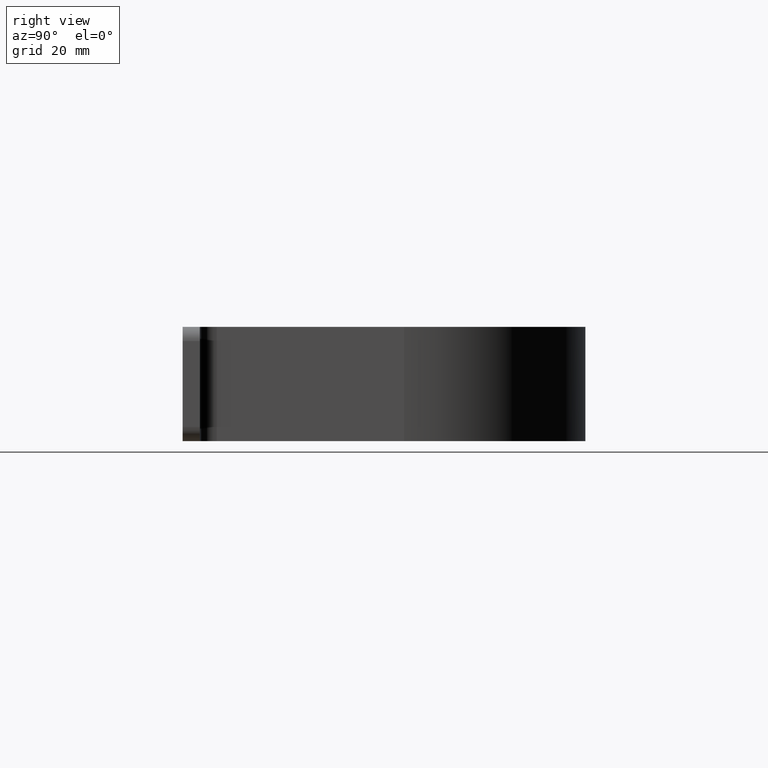
[diagram: clean part render]
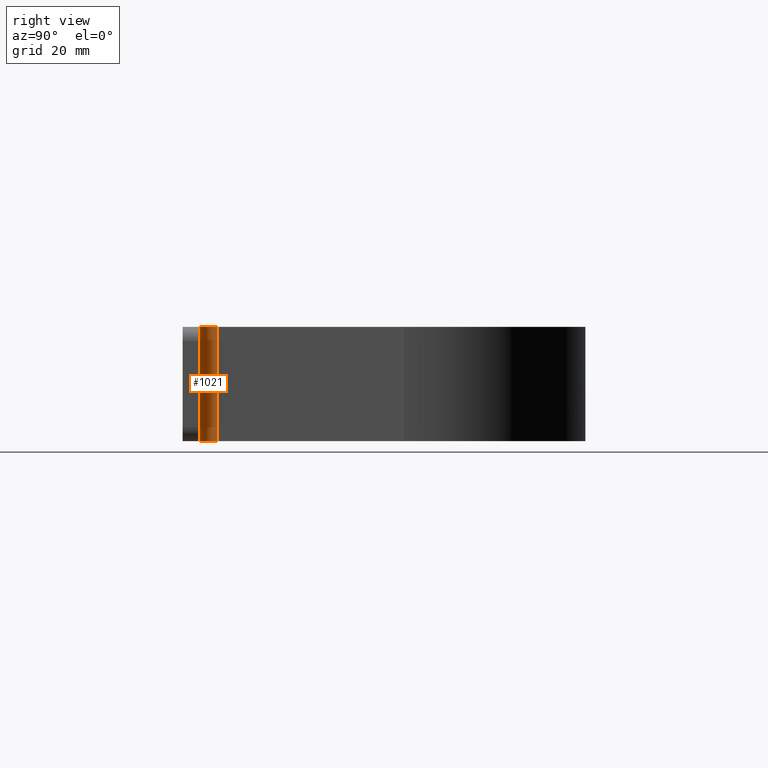
[diagram: same view with one face highlighted and labeled with its STEP entity id]
A machine part, right view. The second image highlights one B-rep face of the part: STEP entity #1021.
In plain terms, the highlighted cylindrical surface (edge-blend (fillet) strip) has radius 6 mm, axis along (-0, -0, -1).
Its self-contained STEP definition (entity closure, byte-faithful):
#59 = AXIS2_PLACEMENT_3D ( 'NONE', #304, #328, #654 ) ;
#140 = FACE_OUTER_BOUND ( 'NONE', #931, .T. ) ;
#163 = ORIENTED_EDGE ( 'NONE', *, *, #193, .F. ) ;
#190 = VERTEX_POINT ( 'NONE', #823 ) ;
#193 = EDGE_CURVE ( 'NONE', #723, #190, #907, .T. ) ;
#246 = CARTESIAN_POINT ( 'NONE',  ( 69.50000000000000000, 17.99999999999998934, 20.00000000000000000 ) ) ;
#304 = CARTESIAN_POINT ( 'NONE',  ( 69.50000000000000000, 17.99999999999998934, -20.00000000000000000 ) ) ;
#328 = DIRECTION ( 'NONE',  ( 0.000000000000000000, 0.000000000000000000, 1.000000000000000000 ) ) ;
#340 = CIRCLE ( 'NONE', #386, 6.000000000000005329 ) ;
#345 = ORIENTED_EDGE ( 'NONE', *, *, #774, .T. ) ;
#354 = CIRCLE ( 'NONE', #59, 6.000000000000005329 ) ;
#360 = DIRECTION ( 'NONE',  ( -0.000000000000000000, -0.000000000000000000, -1.000000000000000000 ) ) ;
#386 = AXIS2_PLACEMENT_3D ( 'NONE', #246, #671, #500 ) ;
#442 = LINE ( 'NONE', #773, #893 ) ;
#447 = ORIENTED_EDGE ( 'NONE', *, *, #1027, .F. ) ;
#457 = VERTEX_POINT ( 'NONE', #998 ) ;
#500 = DIRECTION ( 'NONE',  ( 1.000000000000000000, 0.000000000000000000, 0.000000000000000000 ) ) ;
#548 = ORIENTED_EDGE ( 'NONE', *, *, #650, .T. ) ;
#649 = CARTESIAN_POINT ( 'NONE',  ( 69.50000000000000000, 17.99999999999998934, 20.00000000000000000 ) ) ;
#650 = EDGE_CURVE ( 'NONE', #723, #1007, #340, .T. ) ;
#654 = DIRECTION ( 'NONE',  ( 1.000000000000000000, 0.000000000000000000, 0.000000000000000000 ) ) ;
#659 = DIRECTION ( 'NONE',  ( -0.000000000000000000, -0.000000000000000000, -1.000000000000000000 ) ) ;
#671 = DIRECTION ( 'NONE',  ( 0.000000000000000000, 0.000000000000000000, 1.000000000000000000 ) ) ;
#723 = VERTEX_POINT ( 'NONE', #1106 ) ;
#773 = CARTESIAN_POINT ( 'NONE',  ( 69.50000000000000000, 11.99999999999998934, 20.00000000000000000 ) ) ;
#774 = EDGE_CURVE ( 'NONE', #1007, #457, #442, .T. ) ;
#823 = CARTESIAN_POINT ( 'NONE',  ( 63.50000000000000000, 17.99999999999998934, -20.00000000000000000 ) ) ;
#848 = VECTOR ( 'NONE', #659, 1000.000000000000000 ) ;
#893 = VECTOR ( 'NONE', #360, 1000.000000000000000 ) ;
#898 = CARTESIAN_POINT ( 'NONE',  ( 69.50000000000000000, 11.99999999999998934, 20.00000000000000000 ) ) ;
#907 = LINE ( 'NONE', #1074, #848 ) ;
#918 = AXIS2_PLACEMENT_3D ( 'NONE', #649, #1087, #1094 ) ;
#931 = EDGE_LOOP ( 'NONE', ( #447, #163, #548, #345 ) ) ;
#997 = CYLINDRICAL_SURFACE ( 'NONE', #918, 6.000000000000005329 ) ;
#998 = CARTESIAN_POINT ( 'NONE',  ( 69.50000000000000000, 11.99999999999998934, -20.00000000000000000 ) ) ;
#1007 = VERTEX_POINT ( 'NONE', #898 ) ;
#1021 = ADVANCED_FACE ( 'NONE', ( #140 ), #997, .F. ) ;
#1027 = EDGE_CURVE ( 'NONE', #190, #457, #354, .T. ) ;
#1074 = CARTESIAN_POINT ( 'NONE',  ( 63.50000000000000000, 17.99999999999998934, 20.00000000000000000 ) ) ;
#1087 = DIRECTION ( 'NONE',  ( -0.000000000000000000, -0.000000000000000000, -1.000000000000000000 ) ) ;
#1094 = DIRECTION ( 'NONE',  ( -1.000000000000000000, 0.000000000000000000, 0.000000000000000000 ) ) ;
#1106 = CARTESIAN_POINT ( 'NONE',  ( 63.50000000000000000, 17.99999999999998934, 20.00000000000000000 ) ) ;